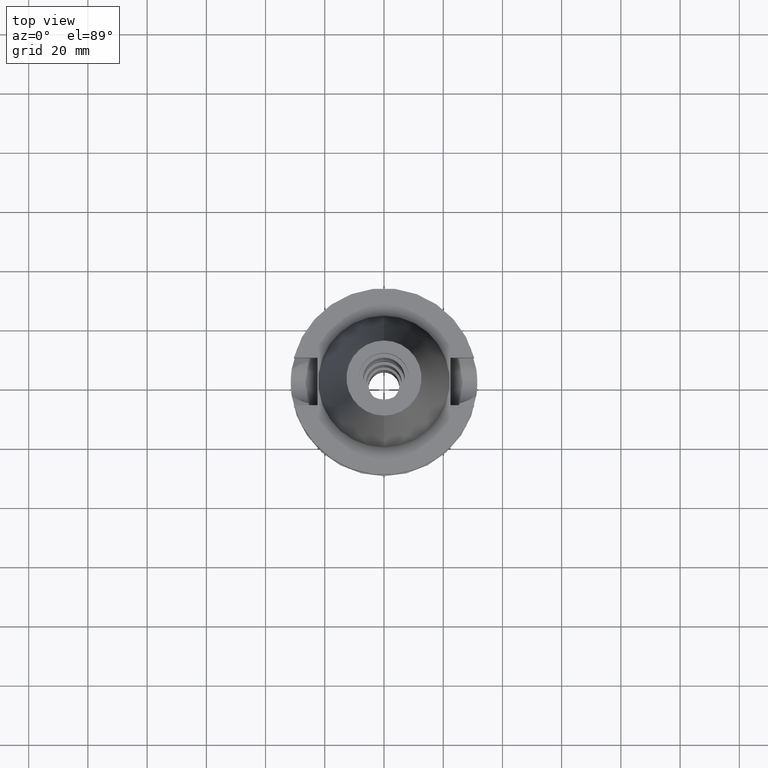
[diagram: clean part render]
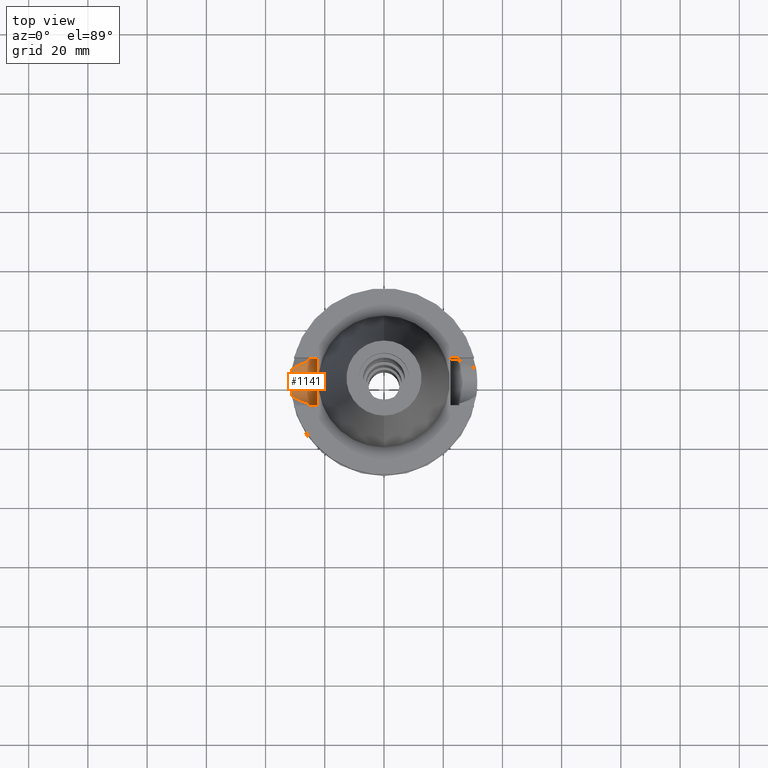
[diagram: same view with one face highlighted and labeled with its STEP entity id]
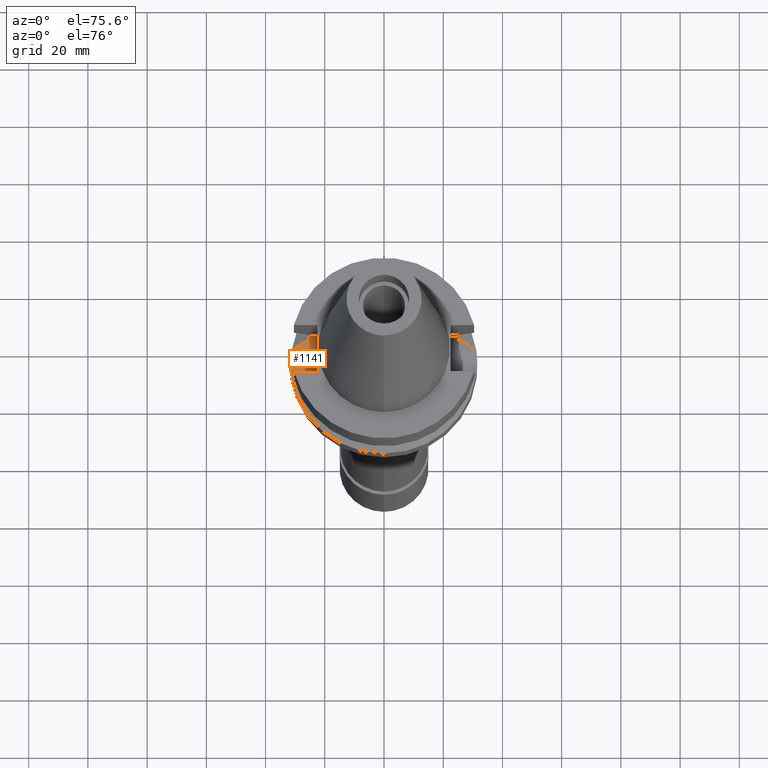
[diagram: same view with one face highlighted and labeled with its STEP entity id]
A machine part, top view. The second image highlights one B-rep face of the part: STEP entity #1141.
A second angle (auxiliary view) of the same face is appended — the face is thin or edge-on in the first view.
In plain terms, the highlighted cylindrical surface (edge-blend (fillet) strip) has radius 8.05 mm, axis along (-1, 0, 0).
Its self-contained STEP definition (entity closure, byte-faithful):
#35 = VERTEX_POINT ( 'NONE', #422 ) ;
#50 = CARTESIAN_POINT ( 'NONE',  ( -25.27269362851938439, 7.971776845743879569, -16.08140886123936752 ) ) ;
#61 = CARTESIAN_POINT ( 'NONE',  ( -31.33120162170804335, 3.261756837996632630, -22.31227277726726044 ) ) ;
#78 = CARTESIAN_POINT ( 'NONE',  ( -31.17899877608999759, 4.485536235554000051, -21.63449434733000132 ) ) ;
#94 = CARTESIAN_POINT ( 'NONE',  ( -25.32121239491488751, 7.815992311006510818, -16.87694802586387866 ) ) ;
#105 = CARTESIAN_POINT ( 'NONE',  ( -25.31953856223280042, 7.821415313606734365, -16.85483585135012774 ) ) ;
#136 = ORIENTED_EDGE ( 'NONE', *, *, #1692, .T. ) ;
#139 = DIRECTION ( 'NONE',  ( -1.000000000000000000, 1.551559937893000172E-14, 1.680856599384000216E-14 ) ) ;
#180 = CARTESIAN_POINT ( 'NONE',  ( -31.50000000000000000, 0.0000000000000000000, -14.94999999999999929 ) ) ;
#196 = DIRECTION ( 'NONE',  ( 0.0000000000000000000, 0.0000000000000000000, -1.000000000000000000 ) ) ;
#218 = CARTESIAN_POINT ( 'NONE',  ( -25.27269246206562769, -7.973290322419560816, -16.24535685341755453 ) ) ;
#245 = EDGE_CURVE ( 'NONE', #2660, #3012, #2062, .T. ) ;
#249 = CARTESIAN_POINT ( 'NONE',  ( -25.34387967354902926, -7.742345491371905197, -17.15662736176142644 ) ) ;
#265 = CARTESIAN_POINT ( 'NONE',  ( -25.37572817766068312, -7.637723572221430501, -17.49814693646531083 ) ) ;
#289 = CARTESIAN_POINT ( 'NONE',  ( -25.53175183775000079, -7.097862220092999941, -18.74774300138999905 ) ) ;
#295 = CARTESIAN_POINT ( 'NONE',  ( -31.49999112722844785, 0.3946195965372648606, -23.00002780801114710 ) ) ;
#297 = CARTESIAN_POINT ( 'NONE',  ( -28.65201884028689250, 5.974241018802054271, -20.34546627131935992 ) ) ;
#333 = CARTESIAN_POINT ( 'NONE',  ( -25.31205215169140388, 7.845639877984849520, -16.75318815716048704 ) ) ;
#343 = CARTESIAN_POINT ( 'NONE',  ( -31.22683168101252704, 4.153049325257791580, -21.85760502803080385 ) ) ;
#366 = B_SPLINE_CURVE_WITH_KNOTS ( 'NONE', 3,
 ( #1682, #2611, #467, #2380, #2767, #2685, #2242, #295, #1756, #2226, #1292, #813, #2505, #1249, #61, #1986, #343, #78 ),
 .UNSPECIFIED., .F., .F.,
 ( 4, 2, 2, 2, 2, 2, 2, 2, 4 ),
 ( 0.0000000000000000000, 0.2500000000000001665, 0.3750000000000000555, 0.5000000000000000000, 0.6250000000000001110, 0.7500000000000000000, 0.8125000000000000000, 0.8749999999999998890, 1.000000000000000000 ),
 .UNSPECIFIED. ) ;
#367 = B_SPLINE_CURVE_WITH_KNOTS ( 'NONE', 3,
 ( #1283, #790, #2002, #1524, #2210, #1775, #2974, #2497, #1730, #2703, #1760, #297, #2714, #1252, #547 ),
 .UNSPECIFIED., .F., .F.,
 ( 4, 2, 2, 1, 1, 1, 2, 2, 4 ),
 ( 0.0000000000000000000, 0.2500000000000139333, 0.3750000000000212608, 0.4375000000000251466, 0.4687500000000268119, 0.4843750000000265898, 0.4921875000000255351, 0.5000000000000244249, 1.000000000000000000 ),
 .UNSPECIFIED. ) ;
#422 = CARTESIAN_POINT ( 'NONE',  ( -31.17899877608999759, -4.485536235554000051, -21.63449434733000132 ) ) ;
#423 = CARTESIAN_POINT ( 'NONE',  ( -29.78685640073588559, -5.397256883601027511, -20.92496930415191869 ) ) ;
#437 = CARTESIAN_POINT ( 'NONE',  ( -29.03097981403747596, -5.794724296709810929, -20.53897768735079055 ) ) ;
#439 = EDGE_CURVE ( 'NONE', #1390, #1042, #367, .T. ) ;
#453 = CARTESIAN_POINT ( 'NONE',  ( -28.62727954565016475, -5.985698460257225406, -20.33274496905597672 ) ) ;
#467 = CARTESIAN_POINT ( 'NONE',  ( -31.35744702332718248, -3.088306468757432199, -22.42610245659388468 ) ) ;
#468 = CARTESIAN_POINT ( 'NONE',  ( -25.32844325893329085, -7.792538688759382381, -16.96970524096600386 ) ) ;
#471 = DIRECTION ( 'NONE',  ( 0.0000000000000000000, -1.000000000000000000, 0.0000000000000000000 ) ) ;
#517 = LINE ( 'NONE', #2712, #1312 ) ;
#518 = CARTESIAN_POINT ( 'NONE',  ( -22.50000000000000000, 8.050000000000000711, -14.94999999999999929 ) ) ;
#542 = EDGE_CURVE ( 'NONE', #649, #1390, #1938, .T. ) ;
#547 = CARTESIAN_POINT ( 'NONE',  ( -31.17899877608999759, 4.485536235554000051, -21.63449434733000132 ) ) ;
#559 = CARTESIAN_POINT ( 'NONE',  ( -25.24772266958000344, 8.050000000000000711, -14.94999999999999929 ) ) ;
#613 = EDGE_CURVE ( 'NONE', #2660, #1758, #1308, .T. ) ;
#649 = VERTEX_POINT ( 'NONE', #2811 ) ;
#719 = ORIENTED_EDGE ( 'NONE', *, *, #542, .T. ) ;
#747 = CARTESIAN_POINT ( 'NONE',  ( -25.32419265906723638, -7.806329682139816484, -16.91574545217585168 ) ) ;
#761 = CARTESIAN_POINT ( 'NONE',  ( -25.24772266957998923, -8.049999999999995381, -15.58999073686769954 ) ) ;
#776 = CARTESIAN_POINT ( 'NONE',  ( -25.31651473517373319, 7.831204282425767715, -16.81418255957589381 ) ) ;
#790 = CARTESIAN_POINT ( 'NONE',  ( -26.13323362321117926, 6.932525184076961722, -19.05675272139363940 ) ) ;
#813 = CARTESIAN_POINT ( 'NONE',  ( -31.39943895197727031, 2.522230831061436085, -22.59723488500583954 ) ) ;
#829 = B_SPLINE_CURVE_WITH_KNOTS ( 'NONE', 3,
 ( #1874, #884, #3024, #423, #1622, #2591, #437, #1384, #2352, #2847, #453, #2046, #2066, #864, #3045, #1823 ),
 .UNSPECIFIED., .F., .F.,
 ( 4, 2, 2, 1, 1, 1, 1, 2, 2, 4 ),
 ( 0.0000000000000000000, 0.2500000000000106026, 0.3750000000000168199, 0.4375000000000199840, 0.4687500000000207057, 0.4843750000000201505, 0.4921875000000195954, 0.4960937500000187073, 0.5000000000000177636, 1.000000000000000000 ),
 .UNSPECIFIED. ) ;
#837 = CARTESIAN_POINT ( 'NONE',  ( -22.50000000000000000, -8.050000000000000711, -14.94999999999999929 ) ) ;
#857 = CARTESIAN_POINT ( 'NONE',  ( -22.50000000000000000, -8.050000000000000711, -14.94999999999999929 ) ) ;
#864 = CARTESIAN_POINT ( 'NONE',  ( -27.72554988811673837, -6.397739216251981276, -19.87209684960093270 ) ) ;
#884 = CARTESIAN_POINT ( 'NONE',  ( -30.82498537334093669, -4.754115104431203775, -21.45426826202986703 ) ) ;
#966 = CARTESIAN_POINT ( 'NONE',  ( -25.24772266958000344, -8.050000000000000711, -14.94999999999999929 ) ) ;
#972 = EDGE_CURVE ( 'NONE', #649, #3012, #517, .T. ) ;
#1017 = CARTESIAN_POINT ( 'NONE',  ( -25.53175183775000079, 7.097862220092999941, -18.74774300138999905 ) ) ;
#1042 = VERTEX_POINT ( 'NONE', #2592 ) ;
#1048 = ORIENTED_EDGE ( 'NONE', *, *, #613, .F. ) ;
#1061 = CARTESIAN_POINT ( 'NONE',  ( -25.36817639386203993, 7.663730038090586838, -17.48830455207396284 ) ) ;
#1073 = CARTESIAN_POINT ( 'NONE',  ( -25.43788182431265810, 7.435522463943954996, -18.11666662597569655 ) ) ;
#1141 = ADVANCED_FACE ( 'NONE', ( #2369 ), #1188, .F. ) ;
#1165 = B_SPLINE_CURVE_WITH_KNOTS ( 'NONE', 3,
 ( #2844, #2873, #1412, #1195, #265, #1918, #249, #3107, #468, #1631, #747, #218, #761, #2913 ),
 .UNSPECIFIED., .F., .F.,
 ( 4, 2, 2, 1, 1, 2, 2, 4 ),
 ( 0.0000000000000000000, 0.2500000000000232592, 0.3750000000000336398, 0.4375000000000388578, 0.4687500000000429101, 0.4843750000000435763, 0.5000000000000441869, 1.000000000000000000 ),
 .UNSPECIFIED. ) ;
#1176 = VECTOR ( 'NONE', #139, 1000.000000000000000 ) ;
#1188 = CYLINDRICAL_SURFACE ( 'NONE', #3091, 8.050000000000000711 ) ;
#1195 = CARTESIAN_POINT ( 'NONE',  ( -25.39164478449761475, -7.584820969893641518, -17.65194245036902387 ) ) ;
#1249 = CARTESIAN_POINT ( 'NONE',  ( -31.34957679365706085, 3.080360595628370834, -22.38998591285069750 ) ) ;
#1252 = CARTESIAN_POINT ( 'NONE',  ( -30.48766886367024753, 5.010026564042303399, -21.28254246415593798 ) ) ;
#1265 = ORIENTED_EDGE ( 'NONE', *, *, #2263, .T. ) ;
#1283 = CARTESIAN_POINT ( 'NONE',  ( -25.53175183775000079, 7.097862220092999941, -18.74774300138999905 ) ) ;
#1292 = CARTESIAN_POINT ( 'NONE',  ( -31.44181935878845380, 1.951321312786099993, -22.76994941665888561 ) ) ;
#1308 = LINE ( 'NONE', #857, #1176 ) ;
#1312 = VECTOR ( 'NONE', #1501, 1000.000000000000000 ) ;
#1342 = ORIENTED_EDGE ( 'NONE', *, *, #3112, .F. ) ;
#1344 = VERTEX_POINT ( 'NONE', #289 ) ;
#1384 = CARTESIAN_POINT ( 'NONE',  ( -28.81539899028852147, -5.898135955145136222, -20.42884739519783466 ) ) ;
#1390 = VERTEX_POINT ( 'NONE', #2621 ) ;
#1412 = CARTESIAN_POINT ( 'NONE',  ( -25.44392473217590123, -7.408251102513281339, -18.11706870842561656 ) ) ;
#1501 = DIRECTION ( 'NONE',  ( 1.000000000000000000, 1.486911607147000170E-14, -1.680856599384000216E-14 ) ) ;
#1524 = CARTESIAN_POINT ( 'NONE',  ( -27.47918374038591693, 6.467261676440970497, -19.74624236174089731 ) ) ;
#1622 = CARTESIAN_POINT ( 'NONE',  ( -29.56200736631998538, -5.521762389461058795, -20.81018774783185776 ) ) ;
#1631 = CARTESIAN_POINT ( 'NONE',  ( -25.32550226136659433, -7.802082245156309881, -16.93251888162864205 ) ) ;
#1682 = CARTESIAN_POINT ( 'NONE',  ( -31.17899877608999759, -4.485536235554000051, -21.63449434733000132 ) ) ;
#1692 = EDGE_CURVE ( 'NONE', #35, #1344, #829, .T. ) ;
#1730 = CARTESIAN_POINT ( 'NONE',  ( -28.56977493437852544, 6.011956207388032603, -20.30345935747062924 ) ) ;
#1756 = CARTESIAN_POINT ( 'NONE',  ( -31.49264463731100250, 0.7852892009116748673, -22.97138455819568748 ) ) ;
#1758 = VERTEX_POINT ( 'NONE', #966 ) ;
#1760 = CARTESIAN_POINT ( 'NONE',  ( -28.63960803190131799, 5.979958188693505150, -20.33912718151943366 ) ) ;
#1775 = CARTESIAN_POINT ( 'NONE',  ( -28.09300091904398045, 6.220708640682807378, -20.05994736631078368 ) ) ;
#1823 = CARTESIAN_POINT ( 'NONE',  ( -25.53175183775000079, -7.097862220092999941, -18.74774300138999905 ) ) ;
#1874 = CARTESIAN_POINT ( 'NONE',  ( -31.17899877608999759, -4.485536235554000051, -21.63449434733000132 ) ) ;
#1886 = CARTESIAN_POINT ( 'NONE',  ( -22.50000000000000000, 0.0000000000000000000, -14.94999999999999929 ) ) ;
#1918 = CARTESIAN_POINT ( 'NONE',  ( -25.35411833098896750, -7.708843546315279127, -17.27003765536344915 ) ) ;
#1938 = B_SPLINE_CURVE_WITH_KNOTS ( 'NONE', 3,
 ( #559, #2195, #2929, #50, #1973, #2950, #2482, #333, #776, #105, #94, #1061, #1073, #1017 ),
 .UNSPECIFIED., .F., .F.,
 ( 4, 2, 2, 1, 1, 2, 2, 4 ),
 ( 0.0000000000000000000, 0.2499999999999995004, 0.3749999999999987232, 0.4374999999999995004, 0.4687499999999998890, 0.4843749999999987232, 0.4999999999999975020, 1.000000000000000000 ),
 .UNSPECIFIED. ) ;
#1964 = ORIENTED_EDGE ( 'NONE', *, *, #972, .F. ) ;
#1973 = CARTESIAN_POINT ( 'NONE',  ( -25.28049705318793627, 7.946995236603677348, -16.24429385864500119 ) ) ;
#1986 = CARTESIAN_POINT ( 'NONE',  ( -31.27140679686819169, 3.805539103220627606, -22.05493847060270696 ) ) ;
#2002 = CARTESIAN_POINT ( 'NONE',  ( -26.69527682205280072, 6.752322116988189293, -19.34503169100201703 ) ) ;
#2046 = CARTESIAN_POINT ( 'NONE',  ( -28.61146977033280336, -5.992951518284984402, -20.32466850684847870 ) ) ;
#2062 = CIRCLE ( 'NONE', #2327, 8.050000000000000711 ) ;
#2066 = CARTESIAN_POINT ( 'NONE',  ( -28.60242947860376006, -5.997089447744253121, -20.32005026607100362 ) ) ;
#2161 = DIRECTION ( 'NONE',  ( 1.000000000000000000, 0.0000000000000000000, 0.0000000000000000000 ) ) ;
#2195 = CARTESIAN_POINT ( 'NONE',  ( -25.24772266957999634, 8.050000000000000711, -15.26998507808555772 ) ) ;
#2210 = CARTESIAN_POINT ( 'NONE',  ( -27.73062639984207323, 6.369774374875059486, -19.87479306449664662 ) ) ;
#2226 = CARTESIAN_POINT ( 'NONE',  ( -31.46339051499590767, 1.567929425034269908, -22.85564424900722358 ) ) ;
#2242 = CARTESIAN_POINT ( 'NONE',  ( -31.50000885681816243, -0.3932018080066230770, -23.00009118396095076 ) ) ;
#2263 = EDGE_CURVE ( 'NONE', #1344, #1758, #1165, .T. ) ;
#2327 = AXIS2_PLACEMENT_3D ( 'NONE', #1886, #2161, #471 ) ;
#2352 = CARTESIAN_POINT ( 'NONE',  ( -28.70603875186110798, -5.949337341077149510, -20.37297958997316982 ) ) ;
#2369 = FACE_OUTER_BOUND ( 'NONE', #2614, .T. ) ;
#2380 = CARTESIAN_POINT ( 'NONE',  ( -31.44176131236640970, -1.951903107895862188, -22.76972074901527776 ) ) ;
#2482 = CARTESIAN_POINT ( 'NONE',  ( -25.30215155664317805, 7.877591859989856893, -16.61078122908662280 ) ) ;
#2497 = CARTESIAN_POINT ( 'NONE',  ( -28.47109195882166688, 6.056621915592175220, -20.25305864006635659 ) ) ;
#2504 = DIRECTION ( 'NONE',  ( -1.000000000000000000, 0.0000000000000000000, 0.0000000000000000000 ) ) ;
#2505 = CARTESIAN_POINT ( 'NONE',  ( -31.38376273586889553, 2.709985807931204249, -22.53275648635440476 ) ) ;
#2551 = ORIENTED_EDGE ( 'NONE', *, *, #439, .T. ) ;
#2591 = CARTESIAN_POINT ( 'NONE',  ( -29.21038111478371135, -5.704420584207255729, -20.63061404073968674 ) ) ;
#2592 = CARTESIAN_POINT ( 'NONE',  ( -31.17899877608999759, 4.485536235554000051, -21.63449434733000132 ) ) ;
#2611 = CARTESIAN_POINT ( 'NONE',  ( -31.27471953632840496, -3.820180454319141550, -22.08097201807406407 ) ) ;
#2614 = EDGE_LOOP ( 'NONE', ( #1265, #1048, #2662, #1964, #719, #2551, #1342, #136 ) ) ;
#2621 = CARTESIAN_POINT ( 'NONE',  ( -25.53175183775000079, 7.097862220092999941, -18.74774300138999905 ) ) ;
#2660 = VERTEX_POINT ( 'NONE', #837 ) ;
#2662 = ORIENTED_EDGE ( 'NONE', *, *, #245, .T. ) ;
#2685 = CARTESIAN_POINT ( 'NONE',  ( -31.49262578728777839, -0.7853332988177940122, -22.97131159560626301 ) ) ;
#2703 = CARTESIAN_POINT ( 'NONE',  ( -28.61172100998588519, 5.992763891840375834, -20.32488350141359490 ) ) ;
#2712 = CARTESIAN_POINT ( 'NONE',  ( -25.24772266958000344, 8.050000000000000711, -14.94999999999999929 ) ) ;
#2714 = CARTESIAN_POINT ( 'NONE',  ( -29.65046244200107850, 5.512439109535700155, -20.85545622421966172 ) ) ;
#2767 = CARTESIAN_POINT ( 'NONE',  ( -31.46351279778429699, -1.565116542638131047, -22.85612983544853449 ) ) ;
#2811 = CARTESIAN_POINT ( 'NONE',  ( -25.24772266958000344, 8.050000000000000711, -14.94999999999999929 ) ) ;
#2844 = CARTESIAN_POINT ( 'NONE',  ( -25.53175183775000079, -7.097862220092999941, -18.74774300138999905 ) ) ;
#2847 = CARTESIAN_POINT ( 'NONE',  ( -28.65096617600918805, -5.974809570868998776, -20.34484537439867324 ) ) ;
#2873 = CARTESIAN_POINT ( 'NONE',  ( -25.48481820018465527, -7.266687417048224518, -18.43221401829536177 ) ) ;
#2913 = CARTESIAN_POINT ( 'NONE',  ( -25.24772266958000344, -8.050000000000000711, -14.94999999999999929 ) ) ;
#2929 = CARTESIAN_POINT ( 'NONE',  ( -25.25396540931484068, 8.030898905574026969, -15.59374771997001474 ) ) ;
#2950 = CARTESIAN_POINT ( 'NONE',  ( -25.29454321759132540, 7.902025553458279283, -16.48861938869699273 ) ) ;
#2974 = CARTESIAN_POINT ( 'NONE',  ( -28.27049081114935447, 6.145466226917973174, -20.15060772719505877 ) ) ;
#3012 = VERTEX_POINT ( 'NONE', #518 ) ;
#3024 = CARTESIAN_POINT ( 'NONE',  ( -30.43269810415878496, -5.016862600548094520, -21.25445476308356163 ) ) ;
#3045 = CARTESIAN_POINT ( 'NONE',  ( -26.70425651323393268, -6.775560776484000236, -19.35011426222079578 ) ) ;
#3091 = AXIS2_PLACEMENT_3D ( 'NONE', #180, #2504, #196 ) ;
#3107 = CARTESIAN_POINT ( 'NONE',  ( -25.33292553852032825, -7.777985707516963387, -17.02558215515367834 ) ) ;
#3112 = EDGE_CURVE ( 'NONE', #35, #1042, #366, .T. ) ;